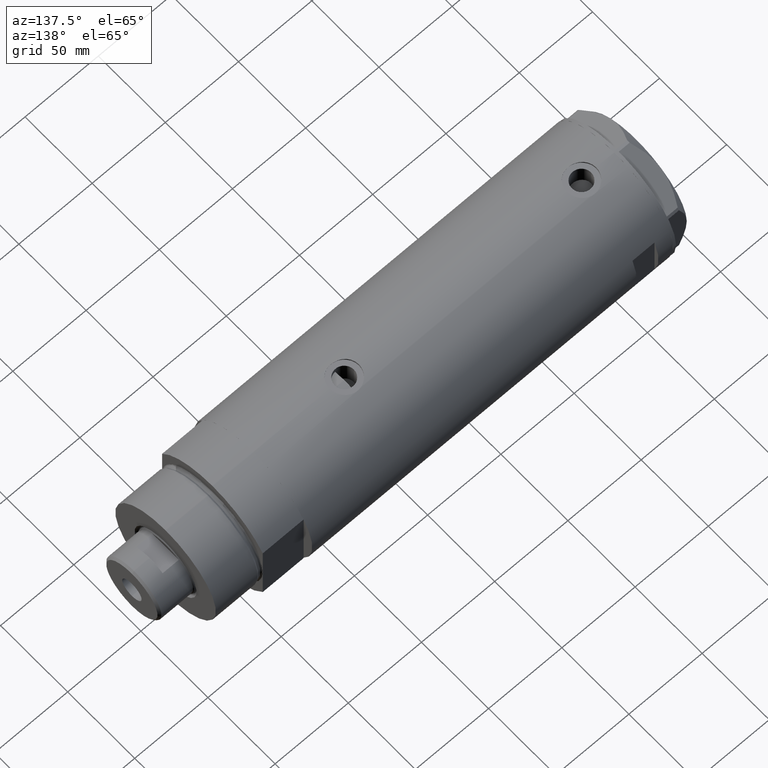
[diagram: clean part render]
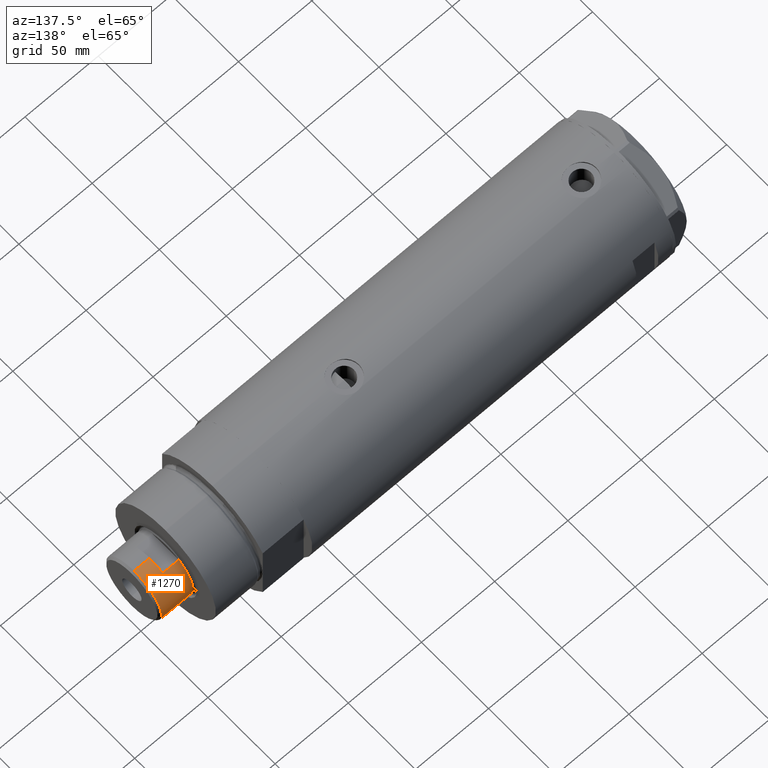
[diagram: same view with one face highlighted and labeled with its STEP entity id]
A machine part, auxiliary view. The second image highlights one B-rep face of the part: STEP entity #1270.
In plain terms, the highlighted cylindrical surface (partial cylindrical patch) has radius 20.5 mm, axis along (-1, -0, 0).
Its self-contained STEP definition (entity closure, byte-faithful):
#43 = DIRECTION ( 'NONE',  ( -0.000000000000000000, -0.000000000000000000, -1.000000000000000000 ) ) ;
#189 = LINE ( 'NONE', #2695, #2623 ) ;
#195 = DIRECTION ( 'NONE',  ( -1.000000000000000000, 0.000000000000000000, 0.000000000000000000 ) ) ;
#242 = CARTESIAN_POINT ( 'NONE',  ( 20.50000000000000355, 2.510525938252074481E-15, 291.3000000000000114 ) ) ;
#433 = AXIS2_PLACEMENT_3D ( 'NONE', #3009, #3777, #195 ) ;
#452 = VECTOR ( 'NONE', #2604, 1000.000000000000000 ) ;
#494 = DIRECTION ( 'NONE',  ( -0.000000000000000000, -0.000000000000000000, -1.000000000000000000 ) ) ;
#509 = DIRECTION ( 'NONE',  ( 0.000000000000000000, 0.000000000000000000, -1.000000000000000000 ) ) ;
#552 = CARTESIAN_POINT ( 'NONE',  ( -20.50000000000000355, 0.000000000000000000, 301.8999999999999773 ) ) ;
#589 = CIRCLE ( 'NONE', #3623, 20.50000000000000000 ) ;
#693 = CARTESIAN_POINT ( 'NONE',  ( 0.000000000000000000, 0.000000000000000000, 291.3000000000000114 ) ) ;
#1052 = VERTEX_POINT ( 'NONE', #3336 ) ;
#1165 = DIRECTION ( 'NONE',  ( 0.000000000000000000, 0.000000000000000000, 1.000000000000000000 ) ) ;
#1166 = LINE ( 'NONE', #1564, #452 ) ;
#1243 = DIRECTION ( 'NONE',  ( 1.000000000000000000, 0.000000000000000000, 0.000000000000000000 ) ) ;
#1248 = CARTESIAN_POINT ( 'NONE',  ( 20.50000000000000000, 2.510525938252074481E-15, 291.3000000000000114 ) ) ;
#1270 = ADVANCED_FACE ( 'NONE', ( #4048 ), #3401, .T. ) ;
#1286 = VERTEX_POINT ( 'NONE', #1248 ) ;
#1331 = CARTESIAN_POINT ( 'NONE',  ( -20.50000000000000000, 0.000000000000000000, 291.3000000000000114 ) ) ;
#1564 = CARTESIAN_POINT ( 'NONE',  ( -17.97852886083842705, 9.849999999999997868, 291.3000000000000114 ) ) ;
#1579 = ORIENTED_EDGE ( 'NONE', *, *, #3741, .T. ) ;
#1598 = EDGE_CURVE ( 'NONE', #4346, #1799, #2752, .T. ) ;
#1691 = CIRCLE ( 'NONE', #4272, 20.50000000000000355 ) ;
#1799 = VERTEX_POINT ( 'NONE', #1331 ) ;
#1805 = CARTESIAN_POINT ( 'NONE',  ( -20.50000000000000355, 0.000000000000000000, 291.3000000000000114 ) ) ;
#1842 = VECTOR ( 'NONE', #43, 1000.000000000000000 ) ;
#1956 = ORIENTED_EDGE ( 'NONE', *, *, #2574, .T. ) ;
#1976 = ORIENTED_EDGE ( 'NONE', *, *, #3094, .T. ) ;
#2013 = DIRECTION ( 'NONE',  ( 1.000000000000000000, 0.000000000000000000, 0.000000000000000000 ) ) ;
#2181 = VERTEX_POINT ( 'NONE', #4529 ) ;
#2258 = VERTEX_POINT ( 'NONE', #3589 ) ;
#2455 = AXIS2_PLACEMENT_3D ( 'NONE', #4044, #2716, #2013 ) ;
#2574 = EDGE_CURVE ( 'NONE', #2258, #1799, #3757, .T. ) ;
#2604 = DIRECTION ( 'NONE',  ( -0.000000000000000000, -0.000000000000000000, -1.000000000000000000 ) ) ;
#2623 = VECTOR ( 'NONE', #494, 1000.000000000000000 ) ;
#2695 = CARTESIAN_POINT ( 'NONE',  ( 17.97852886083842705, 9.849999999999997868, 291.3000000000000114 ) ) ;
#2716 = DIRECTION ( 'NONE',  ( 0.000000000000000000, 0.000000000000000000, 1.000000000000000000 ) ) ;
#2752 = LINE ( 'NONE', #1805, #1842 ) ;
#2759 = ORIENTED_EDGE ( 'NONE', *, *, #3511, .T. ) ;
#2860 = EDGE_CURVE ( 'NONE', #2258, #4478, #1166, .T. ) ;
#2893 = VERTEX_POINT ( 'NONE', #4381 ) ;
#2927 = CARTESIAN_POINT ( 'NONE',  ( -17.97852886083843060, 9.850000000000246558, 280.3000000000000114 ) ) ;
#2945 = CARTESIAN_POINT ( 'NONE',  ( 0.000000000000000000, 0.000000000000000000, 291.3000000000000114 ) ) ;
#2980 = DIRECTION ( 'NONE',  ( 1.000000000000000000, 0.000000000000000000, 0.000000000000000000 ) ) ;
#3009 = CARTESIAN_POINT ( 'NONE',  ( 0.000000000000000000, 0.000000000000000000, 291.3000000000000114 ) ) ;
#3016 = EDGE_CURVE ( 'NONE', #2181, #4478, #3468, .T. ) ;
#3094 = EDGE_CURVE ( 'NONE', #1286, #1052, #589, .T. ) ;
#3101 = AXIS2_PLACEMENT_3D ( 'NONE', #2945, #1165, #1243 ) ;
#3236 = ORIENTED_EDGE ( 'NONE', *, *, #1598, .F. ) ;
#3336 = CARTESIAN_POINT ( 'NONE',  ( 17.97852886083842705, 9.849999999999997868, 291.3000000000000114 ) ) ;
#3401 = CYLINDRICAL_SURFACE ( 'NONE', #433, 20.50000000000000355 ) ;
#3468 = CIRCLE ( 'NONE', #2455, 20.50000000000012434 ) ;
#3511 = EDGE_CURVE ( 'NONE', #4346, #2893, #1691, .T. ) ;
#3589 = CARTESIAN_POINT ( 'NONE',  ( -17.97852886083842705, 9.849999999999997868, 291.3000000000000114 ) ) ;
#3623 = AXIS2_PLACEMENT_3D ( 'NONE', #693, #4142, #4165 ) ;
#3659 = ORIENTED_EDGE ( 'NONE', *, *, #3016, .T. ) ;
#3676 = CARTESIAN_POINT ( 'NONE',  ( 0.000000000000000000, 0.000000000000000000, 301.8999999999999773 ) ) ;
#3741 = EDGE_CURVE ( 'NONE', #2893, #1286, #3760, .T. ) ;
#3757 = CIRCLE ( 'NONE', #3101, 20.50000000000000000 ) ;
#3760 = LINE ( 'NONE', #242, #4197 ) ;
#3777 = DIRECTION ( 'NONE',  ( -0.000000000000000000, -0.000000000000000000, -1.000000000000000000 ) ) ;
#4044 = CARTESIAN_POINT ( 'NONE',  ( 0.000000000000000000, 0.000000000000000000, 280.3000000000000114 ) ) ;
#4048 = FACE_OUTER_BOUND ( 'NONE', #4159, .T. ) ;
#4120 = EDGE_CURVE ( 'NONE', #1052, #2181, #189, .T. ) ;
#4142 = DIRECTION ( 'NONE',  ( 0.000000000000000000, 0.000000000000000000, 1.000000000000000000 ) ) ;
#4159 = EDGE_LOOP ( 'NONE', ( #2759, #1579, #1976, #4303, #3659, #4220, #1956, #3236 ) ) ;
#4165 = DIRECTION ( 'NONE',  ( 1.000000000000000000, 0.000000000000000000, 0.000000000000000000 ) ) ;
#4197 = VECTOR ( 'NONE', #4452, 1000.000000000000000 ) ;
#4220 = ORIENTED_EDGE ( 'NONE', *, *, #2860, .F. ) ;
#4272 = AXIS2_PLACEMENT_3D ( 'NONE', #3676, #509, #2980 ) ;
#4303 = ORIENTED_EDGE ( 'NONE', *, *, #4120, .T. ) ;
#4346 = VERTEX_POINT ( 'NONE', #552 ) ;
#4381 = CARTESIAN_POINT ( 'NONE',  ( 20.50000000000000355, 2.510525938252074481E-15, 301.8999999999999773 ) ) ;
#4452 = DIRECTION ( 'NONE',  ( -0.000000000000000000, -0.000000000000000000, -1.000000000000000000 ) ) ;
#4478 = VERTEX_POINT ( 'NONE', #2927 ) ;
#4529 = CARTESIAN_POINT ( 'NONE',  ( 17.97852886083842705, 9.849999999999997868, 280.3000000000000114 ) ) ;